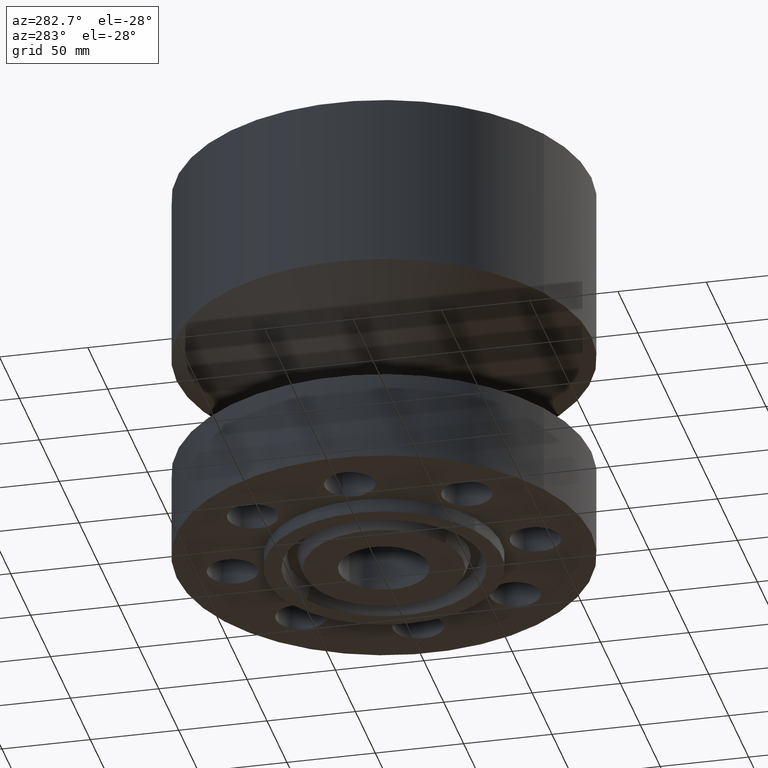
[diagram: clean part render]
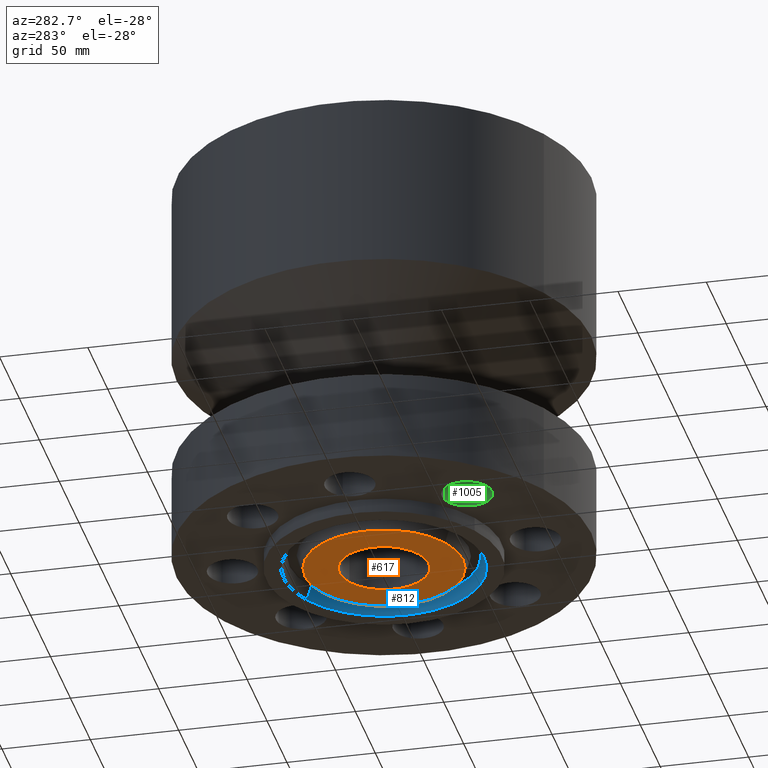
[diagram: same view with three faces highlighted in distinct colors, each labeled with its STEP entity id]
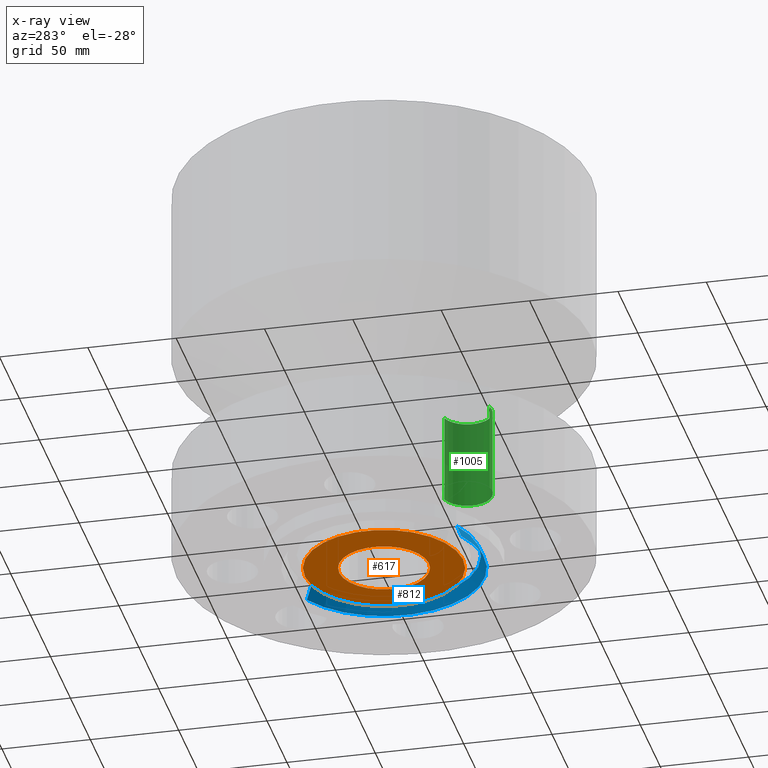
[diagram: x-ray of the same camera — body ghosted, the three highlighted faces saturated]
A machine part, auxiliary view with three faces highlighted in distinct colors.
The next image is the same camera in x-ray (body ghosted, the three faces saturated) — at least one of them is partly hidden behind the body in this view.
Their STEP definitions:

[orange] entity #617 — the highlighted planar face has unit normal (0, 0, -1).
#561=AXIS2_PLACEMENT_3D('Circle Axis2P3D',#559,#560,$) ;
#580=AXIS2_PLACEMENT_3D('Circle Axis2P3D',#578,#579,$) ;
#593=AXIS2_PLACEMENT_3D('Plane Axis2P3D',#590,#591,#592) ;
#597=AXIS2_PLACEMENT_3D('Circle Axis2P3D',#595,#596,$) ;
#606=AXIS2_PLACEMENT_3D('Circle Axis2P3D',#604,#605,$) ;
#556=CARTESIAN_POINT('Vertex',(0.479425538606,0.877582561894,-0.313000000001)) ;
#559=CARTESIAN_POINT('Axis2P3D Location',(0.,0.,-0.313000000001)) ;
#563=CARTESIAN_POINT('Vertex',(-0.479425538606,-0.877582561894,-0.313000000001)) ;
#578=CARTESIAN_POINT('Axis2P3D Location',(0.,0.,-0.313000000001)) ;
#590=CARTESIAN_POINT('Axis2P3D Location',(0.,1.,-0.313000000001)) ;
#595=CARTESIAN_POINT('Axis2P3D Location',(0.,0.,-0.313000000001)) ;
#599=CARTESIAN_POINT('Vertex',(-0.846425788409,-1.54937201302,-0.313000000001)) ;
#601=CARTESIAN_POINT('Vertex',(0.846425788409,1.54937201302,-0.313000000001)) ;
#604=CARTESIAN_POINT('Axis2P3D Location',(0.,0.,-0.313000000001)) ;
#560=DIRECTION('Axis2P3D Direction',(0.,0.,-0.0393700787402)) ;
#579=DIRECTION('Axis2P3D Direction',(0.,0.,-0.0393700787402)) ;
#591=DIRECTION('Axis2P3D Direction',(0.,0.,-0.0393700787402)) ;
#592=DIRECTION('Axis2P3D XDirection',(0.0393700787402,0.,0.)) ;
#596=DIRECTION('Axis2P3D Direction',(0.,0.,-0.0393700787402)) ;
#605=DIRECTION('Axis2P3D Direction',(0.,0.,-0.0393700787402)) ;
#610=ORIENTED_EDGE('',*,*,#603,.T.) ;
#611=ORIENTED_EDGE('',*,*,#608,.T.) ;
#614=ORIENTED_EDGE('',*,*,#565,.F.) ;
#615=ORIENTED_EDGE('',*,*,#582,.F.) ;
#616=FACE_BOUND('',#613,.T.) ;
#617=ADVANCED_FACE('PartBody',(#612,#616),#594,.T.) ;
#562=CIRCLE('generated circle',#561,1.) ;
#581=CIRCLE('generated circle',#580,1.) ;
#598=CIRCLE('generated circle',#597,1.76550000001) ;
#607=CIRCLE('generated circle',#606,1.76550000001) ;
#565=EDGE_CURVE('',#557,#564,#562,.T.) ;
#582=EDGE_CURVE('',#564,#557,#581,.T.) ;
#603=EDGE_CURVE('',#600,#602,#598,.T.) ;
#608=EDGE_CURVE('',#602,#600,#607,.T.) ;
#609=EDGE_LOOP('',(#610,#611)) ;
#613=EDGE_LOOP('',(#614,#615)) ;
#612=FACE_OUTER_BOUND('',#609,.T.) ;
#594=PLANE('',#593) ;
#557=VERTEX_POINT('',#556) ;
#564=VERTEX_POINT('',#563) ;
#600=VERTEX_POINT('',#599) ;
#602=VERTEX_POINT('',#601) ;

[blue] entity #812 — the highlighted conical surface has half-angle 23 deg.
#760=AXIS2_PLACEMENT_3D('Circle Axis2P3D',#758,#759,$) ;
#773=AXIS2_PLACEMENT_3D('Cone Axis2P3D',#770,#771,#772) ;
#803=AXIS2_PLACEMENT_3D('Circle Axis2P3D',#801,#802,$) ;
#736=CARTESIAN_POINT('Vertex',(-1.01142324242,-1.85139782671,-0.0188873350169)) ;
#743=CARTESIAN_POINT('Vertex',(1.01142324242,1.85139782671,-0.0188873350169)) ;
#758=CARTESIAN_POINT('Axis2P3D Location',(0.,0.,-0.0188873350169)) ;
#770=CARTESIAN_POINT('Axis2P3D Location',(0.,0.,-0.0188873350169)) ;
#775=CARTESIAN_POINT('Line Origine',(-1.04134980422,-1.90617803063,-0.165943667509)) ;
#779=CARTESIAN_POINT('Vertex',(-1.07127636602,-1.96095823455,-0.313000000001)) ;
#786=CARTESIAN_POINT('Vertex',(1.07127636602,1.96095823455,-0.313000000001)) ;
#789=CARTESIAN_POINT('Line Origine',(1.04134980422,1.90617803063,-0.165943667509)) ;
#801=CARTESIAN_POINT('Axis2P3D Location',(0.,0.,-0.313000000001)) ;
#759=DIRECTION('Axis2P3D Direction',(0.,0.,-0.0393700787402)) ;
#771=DIRECTION('Axis2P3D Direction',(0.,0.,-0.0393700787402)) ;
#772=DIRECTION('Axis2P3D XDirection',(0.0188750212049,0.0345504945626,0.)) ;
#776=DIRECTION('Vector Direction',(-0.00737505833565,-0.0134999537303,-0.0362403485611)) ;
#790=DIRECTION('Vector Direction',(0.00737505833565,0.0134999537303,-0.0362403485611)) ;
#802=DIRECTION('Axis2P3D Direction',(0.,0.,-0.0393700787402)) ;
#777=VECTOR('Line Direction',#776,0.0393700787402) ;
#791=VECTOR('Line Direction',#790,0.0393700787402) ;
#807=ORIENTED_EDGE('',*,*,#762,.F.) ;
#808=ORIENTED_EDGE('',*,*,#793,.T.) ;
#809=ORIENTED_EDGE('',*,*,#805,.T.) ;
#810=ORIENTED_EDGE('',*,*,#781,.F.) ;
#812=ADVANCED_FACE('PartBody',(#811),#774,.F.) ;
#761=CIRCLE('generated circle',#760,2.10965658059) ;
#804=CIRCLE('generated circle',#803,2.23450000001) ;
#774=CONICAL_SURFACE('Cone',#773,2.10965658059,0.401425727959) ;
#762=EDGE_CURVE('',#744,#737,#761,.T.) ;
#781=EDGE_CURVE('',#737,#780,#778,.T.) ;
#793=EDGE_CURVE('',#744,#787,#792,.T.) ;
#805=EDGE_CURVE('',#787,#780,#804,.T.) ;
#806=EDGE_LOOP('',(#807,#808,#809,#810)) ;
#811=FACE_OUTER_BOUND('',#806,.T.) ;
#778=LINE('Line',#775,#777) ;
#792=LINE('Line',#789,#791) ;
#737=VERTEX_POINT('',#736) ;
#744=VERTEX_POINT('',#743) ;
#780=VERTEX_POINT('',#779) ;
#787=VERTEX_POINT('',#786) ;

[green] entity #1005 — the highlighted cylindrical surface (edge-blend (fillet) strip) has radius 14.224 mm, axis along (0, 0, 1).
#172=AXIS2_PLACEMENT_3D('Circle Axis2P3D',#170,#171,$) ;
#966=AXIS2_PLACEMENT_3D('Cylinder Axis2P3D',#963,#964,#965) ;
#996=AXIS2_PLACEMENT_3D('Circle Axis2P3D',#994,#995,$) ;
#165=CARTESIAN_POINT('Vertex',(-2.54414752395,-2.92383317931,0.)) ;
#167=CARTESIAN_POINT('Vertex',(-2.22882324907,-1.84913759372,0.)) ;
#170=CARTESIAN_POINT('Axis2P3D Location',(-2.38648538651,-2.38648538651,0.)) ;
#963=CARTESIAN_POINT('Axis2P3D Location',(-2.38648538651,-2.38648538651,0.00393700787402)) ;
#968=CARTESIAN_POINT('Line Origine',(-2.54414752395,-2.92383317931,1.)) ;
#972=CARTESIAN_POINT('Vertex',(-2.54414752395,-2.92383317931,2.00000000001)) ;
#975=CARTESIAN_POINT('Line Origine',(-2.22882324907,-1.84913759372,1.)) ;
#979=CARTESIAN_POINT('Vertex',(-2.22882324907,-1.84913759372,2.00000000001)) ;
#994=CARTESIAN_POINT('Axis2P3D Location',(-2.38648538651,-2.38648538651,2.00000000001)) ;
#171=DIRECTION('Axis2P3D Direction',(0.,0.,-0.0393700787402)) ;
#964=DIRECTION('Axis2P3D Direction',(0.,0.,0.0393700787402)) ;
#965=DIRECTION('Axis2P3D XDirection',(-0.0110842335096,-0.0377775444876,0.)) ;
#969=DIRECTION('Vector Direction',(0.,0.,0.0393700787402)) ;
#976=DIRECTION('Vector Direction',(0.,0.,0.0393700787402)) ;
#995=DIRECTION('Axis2P3D Direction',(0.,0.,0.0393700787402)) ;
#970=VECTOR('Line Direction',#969,0.0393700787402) ;
#977=VECTOR('Line Direction',#976,0.0393700787402) ;
#1000=ORIENTED_EDGE('',*,*,#981,.T.) ;
#1001=ORIENTED_EDGE('',*,*,#174,.T.) ;
#1002=ORIENTED_EDGE('',*,*,#974,.F.) ;
#1003=ORIENTED_EDGE('',*,*,#998,.F.) ;
#1005=ADVANCED_FACE('PartBody',(#1004),#967,.F.) ;
#173=CIRCLE('generated circle',#172,0.560000000002) ;
#997=CIRCLE('generated circle',#996,0.560000000002) ;
#967=CYLINDRICAL_SURFACE('generated cylinder',#966,0.560000000002) ;
#174=EDGE_CURVE('',#168,#166,#173,.T.) ;
#974=EDGE_CURVE('',#973,#166,#971,.F.) ;
#981=EDGE_CURVE('',#980,#168,#978,.F.) ;
#998=EDGE_CURVE('',#980,#973,#997,.F.) ;
#999=EDGE_LOOP('',(#1000,#1001,#1002,#1003)) ;
#1004=FACE_OUTER_BOUND('',#999,.T.) ;
#971=LINE('Line',#968,#970) ;
#978=LINE('Line',#975,#977) ;
#166=VERTEX_POINT('',#165) ;
#168=VERTEX_POINT('',#167) ;
#973=VERTEX_POINT('',#972) ;
#980=VERTEX_POINT('',#979) ;